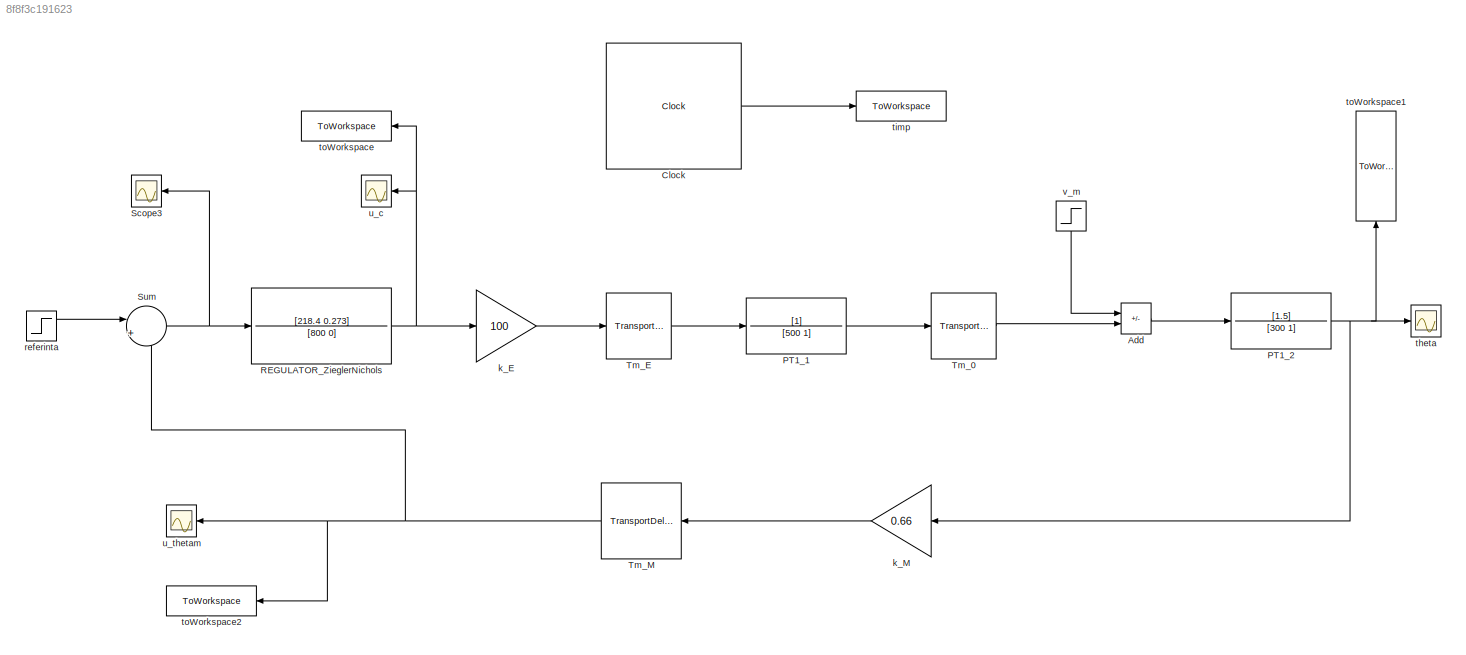
MODEL slx_8f8f3c191623
KIND model
CONFIG AbsTol = auto
CONFIG EnableMultiTasking = off
CONFIG FixedStep = auto
CONFIG MaxStep = auto
CONFIG MinStep = auto
CONFIG RelTol = 1e-3
CONFIG SampleTimeConstraint = Unconstrained
CONFIG SolverName = VariableStepAuto
CONFIG StartTime = 0.0
CONFIG StopTime = 1000.0
BLOCK [Sum] Add
  IconShape = rectangular
  Inputs = -+
BLOCK [Clock] Clock
BLOCK [TransferFcn] PT1_1
  Denominator = [500 1]
BLOCK [TransferFcn] PT1_2
  Denominator = [300 1]
  Numerator = [1.5]
BLOCK [TransferFcn] REGULATOR_ZieglerNichols
  Denominator = [800 0]
  Numerator = [218.4 0.273]
BLOCK [Scope] Scope3
  Floating = off
  NameLocation = top
  NumInputPorts = 1
  ScopeSpecificationString = Simulink.scopes.TimeScopeBlockCfg('CurrentConfiguration', extmgr.ConfigurationSet(extmgr.Configuration('Core','General UI',true),extmgr.Configuration('Core','Source UI',true),extmgr.Configuration('Sources','WiredSimulink',true,'DataLoggingVariableName','ScopeData1'),extmgr.Configuration('Visuals','Time Domain',true,'SerializedDisplays',{struct('MinYLimReal','-9229494695946923819176319701221376.000...<+1700ch>
BLOCK [Sum] Sum
  Inputs = |+-
BLOCK [TransportDelay] Tm_0
  DelayTime = 125
BLOCK [TransportDelay] Tm_E
  DelayTime = 5
BLOCK [TransportDelay] Tm_M
  DelayTime = 20
  NameLocation = top
BLOCK [Gain] k_E
  Gain = 100
BLOCK [Gain] k_M
  Gain = 0.66
  NameLocation = top
BLOCK [Step] referinta
  After = 650
  SampleTime = 0
  Time = 0
BLOCK [Scope] theta
  Floating = off
  NumInputPorts = 1
  ScopeSpecificationString = Simulink.scopes.TimeScopeBlockCfg('CurrentConfiguration', extmgr.ConfigurationSet(extmgr.Configuration('Core','General UI',true),extmgr.Configuration('Core','Source UI',true),extmgr.Configuration('Sources','WiredSimulink',true,'DataLoggingVariableName','ScopeData2'),extmgr.Configuration('Visuals','Time Domain',true,'SerializedDisplays',{struct('MinYLimReal','-21960.85955','MaxYLimReal','8563.3456'...<+1420ch>
BLOCK [ToWorkspace] timp
  FixptAsFi = on
  MaxDataPoints = inf
  SampleTime = -1
  VariableName = t
BLOCK [ToWorkspace] toWorkspace
  FixptAsFi = on
  MaxDataPoints = inf
  NameLocation = top
  SampleTime = -1
  VariableName = u_c
BLOCK [ToWorkspace] toWorkspace1
  FixptAsFi = on
  MaxDataPoints = inf
  NameLocation = right
  SampleTime = -1
  VariableName = theta
BLOCK [ToWorkspace] toWorkspace2
  FixptAsFi = on
  MaxDataPoints = inf
  NameLocation = top
  SampleTime = -1
  VariableName = u_thetam
BLOCK [Scope] u_c
  Floating = off
  NameLocation = top
  NumInputPorts = 1
  ScopeSpecificationString = Simulink.scopes.TimeScopeBlockCfg('CurrentConfiguration', extmgr.ConfigurationSet(extmgr.Configuration('Core','General UI',true),extmgr.Configuration('Core','Source UI',true),extmgr.Configuration('Sources','WiredSimulink',true,'DataLoggingVariableName','ScopeData3'),extmgr.Configuration('Visuals','Time Domain',true,'SerializedDisplays',{struct('MinYLimReal','-27432033560746068190330585375309824.00...<+1680ch>
BLOCK [Scope] u_thetam
  Floating = off
  NameLocation = top
  NumInputPorts = 1
  ScopeSpecificationString = Simulink.scopes.TimeScopeBlockCfg('CurrentConfiguration', extmgr.ConfigurationSet(extmgr.Configuration('Core','General UI',true),extmgr.Configuration('Core','Source UI',true),extmgr.Configuration('Sources','WiredSimulink',true),extmgr.Configuration('Visuals','Time Domain',true,'SerializedDisplays',{struct('MinYLimReal','-352.63968','MaxYLimReal','728.68533','YLabelReal','','MinYLimMag',' 0.00000',...<+1394ch>
BLOCK [Step] v_m
  After = 50
  NameLocation = left
  SampleTime = 0
  Time = 20000
LINE Add:1 -> PT1_2:1
LINE Clock:1 -> timp:1
LINE PT1_1:1 -> Tm_0:1
NET PT1_2:1 -> k_M:1, theta:1, toWorkspace1:1
NET REGULATOR_ZieglerNichols:1 -> k_E:1, toWorkspace:1, u_c:1
NET Sum:1 -> REGULATOR_ZieglerNichols:1, Scope3:1
LINE Tm_0:1 -> Add:2
LINE Tm_E:1 -> PT1_1:1
NET Tm_M:1 -> Sum:2, toWorkspace2:1, u_thetam:1
LINE k_E:1 -> Tm_E:1
LINE k_M:1 -> Tm_M:1
LINE referinta:1 -> Sum:1
LINE v_m:1 -> Add:1
note: NET lines group one-source signal fan-out (src -> all destinations, sorted); 1:1 wires keep LINE
